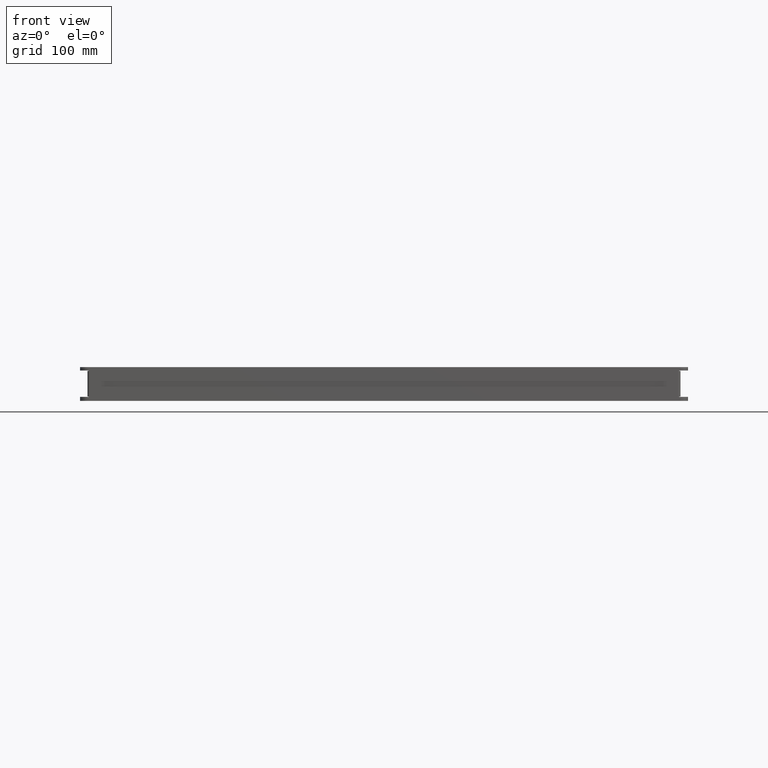
[diagram: clean part render]
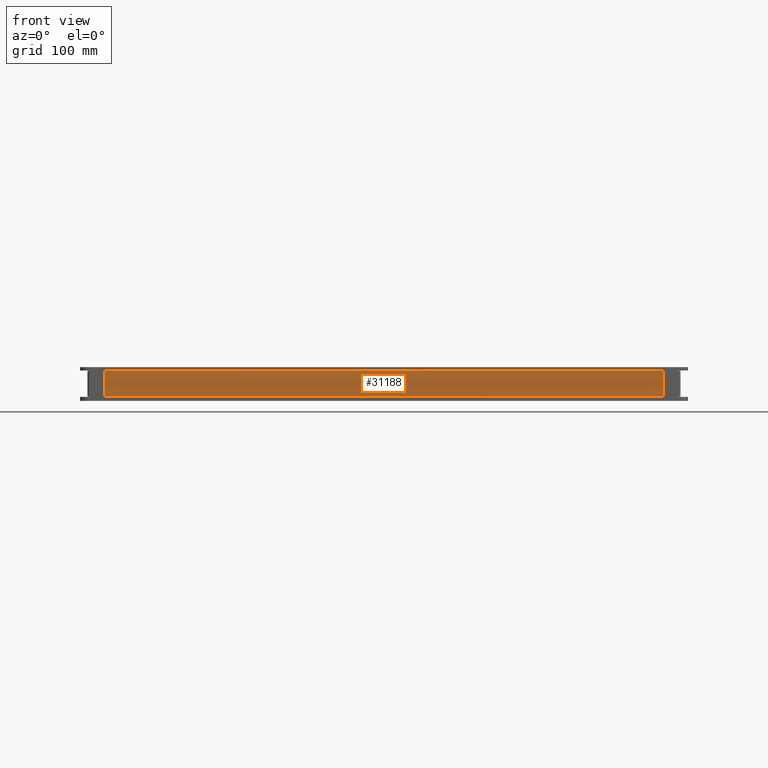
[diagram: same view with one face highlighted and labeled with its STEP entity id]
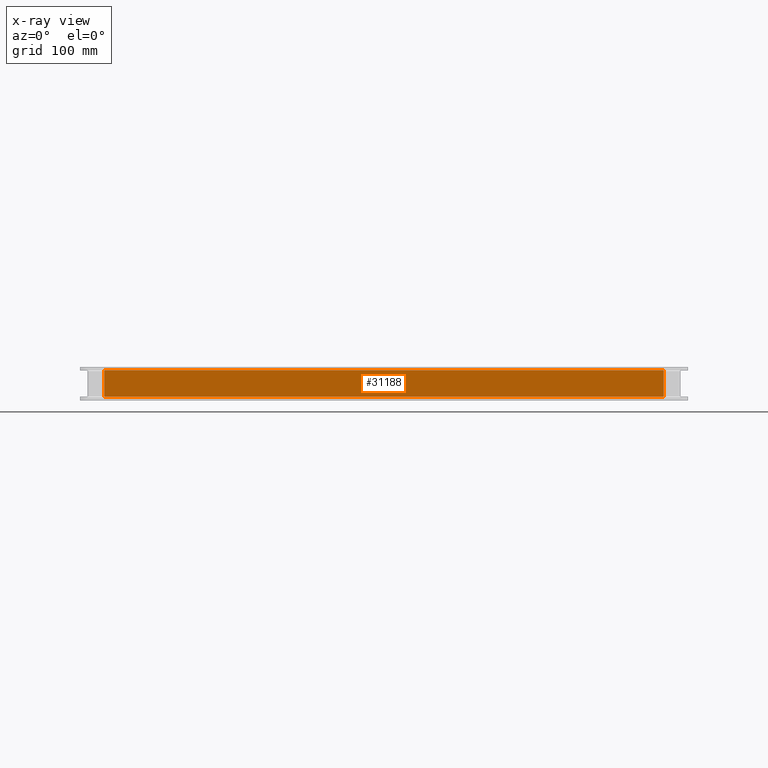
[diagram: x-ray of the same camera — body ghosted, the highlighted face saturated]
A machine part, front view. The second image highlights one B-rep face of the part: STEP entity #31188.
The next image is the same camera in x-ray: the body ghosted, the highlighted face saturated — about 0% of this face is hidden behind the body in this view.
In plain terms, the highlighted planar face has unit normal (-0, 1, 0).
Its self-contained STEP definition (entity closure, byte-faithful):
#24 = CARTESIAN_POINT ( 'NONE',  ( 390.6333857621494303, -278.0308025497471363, -393.5013852687679332 ) ) ;
#915 = ORIENTED_EDGE ( 'NONE', *, *, #52831, .F. ) ;
#2018 = CARTESIAN_POINT ( 'NONE',  ( 367.6333857621494303, -278.0308025497473068, -355.5013852687678764 ) ) ;
#2494 = DIRECTION ( 'NONE',  ( -0.000000000000000000, 1.000000000000000000, 0.000000000000000000 ) ) ;
#2960 = ORIENTED_EDGE ( 'NONE', *, *, #13594, .F. ) ;
#3864 = VERTEX_POINT ( 'NONE', #48759 ) ;
#4394 = EDGE_CURVE ( 'NONE', #3864, #55002, #9818, .T. ) ;
#5400 = ORIENTED_EDGE ( 'NONE', *, *, #23031, .F. ) ;
#6490 = VECTOR ( 'NONE', #46357, 1000.000000000000000 ) ;
#6700 = LINE ( 'NONE', #25433, #55490 ) ;
#6823 = ORIENTED_EDGE ( 'NONE', *, *, #57505, .F. ) ;
#7007 = EDGE_CURVE ( 'NONE', #37200, #43841, #31030, .T. ) ;
#7597 = CARTESIAN_POINT ( 'NONE',  ( -246.3666142378505697, -278.0308025497471363, -355.0013852687700364 ) ) ;
#9734 = CARTESIAN_POINT ( 'NONE',  ( 389.6333857621494303, -278.0308025497473068, -355.5013852687678764 ) ) ;
#9818 = LINE ( 'NONE', #57281, #37715 ) ;
#10525 = VECTOR ( 'NONE', #49358, 1000.000000000000000 ) ;
#11235 = CARTESIAN_POINT ( 'NONE',  ( -460.3666142378503991, -278.0308025497472499, -304.5013852687679332 ) ) ;
#11506 = CARTESIAN_POINT ( 'NONE',  ( 389.6333857621494303, -278.0308025497473068, -393.5013852687679332 ) ) ;
#11884 = PLANE ( 'NONE',  #17509 ) ;
#12350 = EDGE_CURVE ( 'NONE', #39351, #39320, #52204, .T. ) ;
#12358 = CARTESIAN_POINT ( 'NONE',  ( -483.3666142378505697, -278.0308025497471363, -355.5013852687678764 ) ) ;
#13047 = ORIENTED_EDGE ( 'NONE', *, *, #17467, .F. ) ;
#13594 = EDGE_CURVE ( 'NONE', #43841, #39351, #37862, .T. ) ;
#15024 = CARTESIAN_POINT ( 'NONE',  ( -483.3666142378505697, -278.0308025497470794, -393.5013852687679332 ) ) ;
#15475 = ORIENTED_EDGE ( 'NONE', *, *, #12350, .F. ) ;
#16239 = DIRECTION ( 'NONE',  ( 0.000000000000000000, -0.000000000000000000, 1.000000000000000000 ) ) ;
#16552 = CARTESIAN_POINT ( 'NONE',  ( 367.6333857621494303, -278.0308025497473068, -393.5013852687679332 ) ) ;
#17467 = EDGE_CURVE ( 'NONE', #31146, #20501, #54302, .T. ) ;
#17509 = AXIS2_PLACEMENT_3D ( 'NONE', #30013, #2494, #16239 ) ;
#19074 = CARTESIAN_POINT ( 'NONE',  ( -483.3666142378505697, -278.0308025497471363, -445.0013852687678764 ) ) ;
#19857 = VECTOR ( 'NONE', #24273, 1000.000000000000000 ) ;
#19868 = EDGE_CURVE ( 'NONE', #60831, #55647, #6700, .T. ) ;
#20501 = VERTEX_POINT ( 'NONE', #24 ) ;
#22629 = LINE ( 'NONE', #31988, #6490 ) ;
#23031 = EDGE_CURVE ( 'NONE', #60831, #38253, #28475, .T. ) ;
#23351 = CARTESIAN_POINT ( 'NONE',  ( -460.3666142378503991, -278.0308025497472499, -393.5013852687679332 ) ) ;
#24273 = DIRECTION ( 'NONE',  ( 1.000000000000000000, -4.357817818622467104E-17, 2.670884459509479522E-33 ) ) ;
#24422 = DIRECTION ( 'NONE',  ( -0.000000000000000000, 0.000000000000000000, -1.000000000000000000 ) ) ;
#24510 = EDGE_CURVE ( 'NONE', #20501, #55647, #22629, .T. ) ;
#25433 = CARTESIAN_POINT ( 'NONE',  ( -983.3666142378506265, -278.0308025497471363, -394.0013852687678764 ) ) ;
#25947 = LINE ( 'NONE', #11235, #10525 ) ;
#27867 = EDGE_CURVE ( 'NONE', #39320, #31146, #49497, .T. ) ;
#28070 = CARTESIAN_POINT ( 'NONE',  ( 390.6333857621494303, -278.0308025497471363, -355.0013852687701501 ) ) ;
#28475 = LINE ( 'NONE', #51580, #34358 ) ;
#28816 = DIRECTION ( 'NONE',  ( -1.000000000000000000, 1.971276677246373799E-17, 3.081487911019577365E-33 ) ) ;
#30013 = CARTESIAN_POINT ( 'NONE',  ( -246.3666142378505697, -278.0308025497471363, -445.0013852687678764 ) ) ;
#30941 = FACE_OUTER_BOUND ( 'NONE', #54008, .T. ) ;
#31030 = LINE ( 'NONE', #7597, #42023 ) ;
#31146 = VERTEX_POINT ( 'NONE', #16552 ) ;
#31188 = ADVANCED_FACE ( 'NONE', ( #30941 ), #11884, .F. ) ;
#31457 = ORIENTED_EDGE ( 'NONE', *, *, #27867, .F. ) ;
#31648 = VECTOR ( 'NONE', #37730, 1000.000000000000000 ) ;
#31988 = CARTESIAN_POINT ( 'NONE',  ( 390.6333857621494303, -278.0308025497471363, -394.0013852687678764 ) ) ;
#33320 = EDGE_CURVE ( 'NONE', #55002, #37200, #42179, .T. ) ;
#33414 = DIRECTION ( 'NONE',  ( 0.000000000000000000, -0.000000000000000000, 1.000000000000000000 ) ) ;
#34358 = VECTOR ( 'NONE', #37504, 1000.000000000000000 ) ;
#34541 = CARTESIAN_POINT ( 'NONE',  ( -482.3666142378504560, -278.0308025497472499, -393.5013852687679332 ) ) ;
#37200 = VERTEX_POINT ( 'NONE', #51429 ) ;
#37232 = ORIENTED_EDGE ( 'NONE', *, *, #7007, .F. ) ;
#37504 = DIRECTION ( 'NONE',  ( 0.000000000000000000, -0.000000000000000000, 1.000000000000000000 ) ) ;
#37690 = CARTESIAN_POINT ( 'NONE',  ( 390.6333857621494303, -278.0308025497470794, -394.0013852687680469 ) ) ;
#37715 = VECTOR ( 'NONE', #43532, 1000.000000000000000 ) ;
#37730 = DIRECTION ( 'NONE',  ( 1.000000000000000000, -1.971276677246373799E-17, -3.081487911019577365E-33 ) ) ;
#37862 = LINE ( 'NONE', #47861, #56279 ) ;
#38253 = VERTEX_POINT ( 'NONE', #15024 ) ;
#38612 = ORIENTED_EDGE ( 'NONE', *, *, #19868, .T. ) ;
#39193 = DIRECTION ( 'NONE',  ( -3.081487911019577365E-33, 7.703719777548943412E-34, -1.000000000000000000 ) ) ;
#39320 = VERTEX_POINT ( 'NONE', #40371 ) ;
#39351 = VERTEX_POINT ( 'NONE', #43157 ) ;
#40371 = CARTESIAN_POINT ( 'NONE',  ( 367.6333857621494303, -278.0308025497473068, -355.5013852687678764 ) ) ;
#40716 = DIRECTION ( 'NONE',  ( 1.000000000000000000, 0.000000000000000000, 0.000000000000000000 ) ) ;
#42023 = VECTOR ( 'NONE', #40716, 1000.000000000000000 ) ;
#42179 = LINE ( 'NONE', #19074, #48545 ) ;
#43157 = CARTESIAN_POINT ( 'NONE',  ( 390.6333857621494303, -278.0308025497471363, -355.5013852687678764 ) ) ;
#43532 = DIRECTION ( 'NONE',  ( -1.000000000000000000, 4.357817818622467104E-17, -2.670884459509479522E-33 ) ) ;
#43841 = VERTEX_POINT ( 'NONE', #28070 ) ;
#45099 = ORIENTED_EDGE ( 'NONE', *, *, #4394, .F. ) ;
#45887 = CARTESIAN_POINT ( 'NONE',  ( -483.3666142378505697, -278.0308025497470794, -394.0013852687678764 ) ) ;
#46357 = DIRECTION ( 'NONE',  ( -0.000000000000000000, 0.000000000000000000, -1.000000000000000000 ) ) ;
#47861 = CARTESIAN_POINT ( 'NONE',  ( 390.6333857621494303, -278.0308025497471363, -445.0013852687678764 ) ) ;
#48545 = VECTOR ( 'NONE', #33414, 1000.000000000000000 ) ;
#48759 = CARTESIAN_POINT ( 'NONE',  ( -460.3666142378503991, -278.0308025497471363, -355.5013852687678764 ) ) ;
#49358 = DIRECTION ( 'NONE',  ( -2.670884459509479522E-33, -7.703719777548941702E-34, 1.000000000000000000 ) ) ;
#49497 = LINE ( 'NONE', #2018, #53468 ) ;
#51429 = CARTESIAN_POINT ( 'NONE',  ( -483.3666142378505697, -278.0308025497471363, -355.0013852687700364 ) ) ;
#51580 = CARTESIAN_POINT ( 'NONE',  ( -483.3666142378505697, -278.0308025497471363, -394.0013852687678764 ) ) ;
#52204 = LINE ( 'NONE', #9734, #61313 ) ;
#52831 = EDGE_CURVE ( 'NONE', #58658, #3864, #25947, .T. ) ;
#53468 = VECTOR ( 'NONE', #39193, 1000.000000000000000 ) ;
#54008 = EDGE_LOOP ( 'NONE', ( #31457, #15475, #2960, #37232, #54170, #45099, #915, #6823, #5400, #38612, #57180, #13047 ) ) ;
#54170 = ORIENTED_EDGE ( 'NONE', *, *, #33320, .F. ) ;
#54302 = LINE ( 'NONE', #11506, #31648 ) ;
#55002 = VERTEX_POINT ( 'NONE', #12358 ) ;
#55490 = VECTOR ( 'NONE', #58851, 1000.000000000000000 ) ;
#55647 = VERTEX_POINT ( 'NONE', #37690 ) ;
#56279 = VECTOR ( 'NONE', #24422, 1000.000000000000000 ) ;
#57180 = ORIENTED_EDGE ( 'NONE', *, *, #24510, .F. ) ;
#57281 = CARTESIAN_POINT ( 'NONE',  ( -482.3666142378504560, -278.0308025497472499, -355.5013852687678764 ) ) ;
#57505 = EDGE_CURVE ( 'NONE', #38253, #58658, #61763, .T. ) ;
#58658 = VERTEX_POINT ( 'NONE', #23351 ) ;
#58851 = DIRECTION ( 'NONE',  ( 1.000000000000000000, 0.000000000000000000, -1.224646799147353207E-16 ) ) ;
#60831 = VERTEX_POINT ( 'NONE', #45887 ) ;
#61313 = VECTOR ( 'NONE', #28816, 1000.000000000000000 ) ;
#61763 = LINE ( 'NONE', #34541, #19857 ) ;